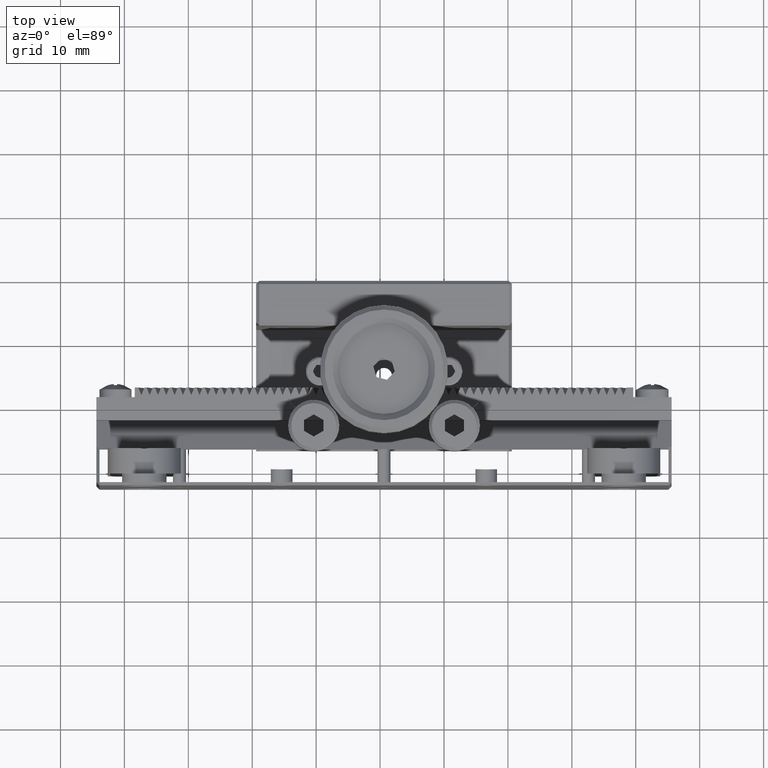
[diagram: clean part render]
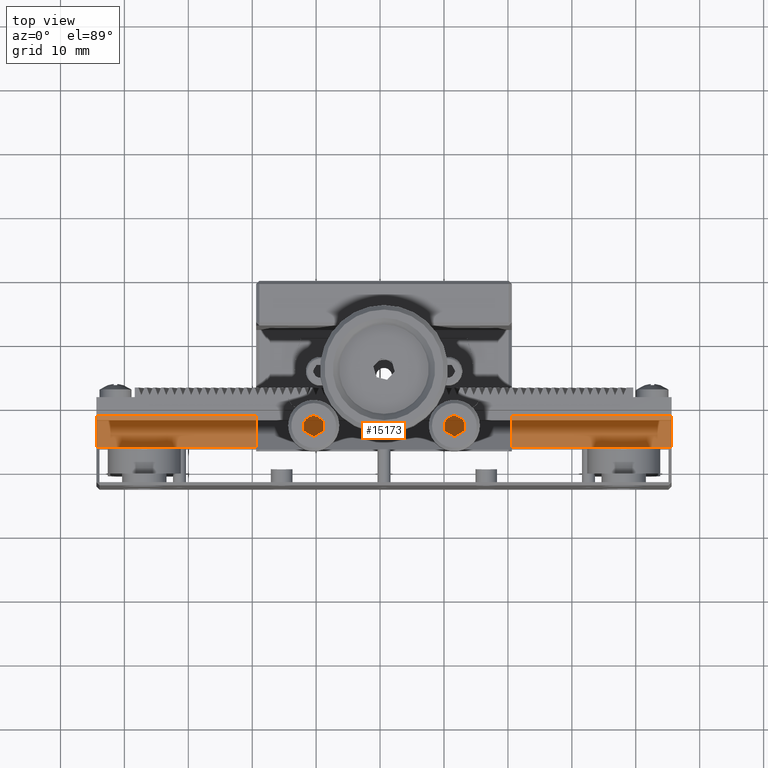
[diagram: same view with one face highlighted and labeled with its STEP entity id]
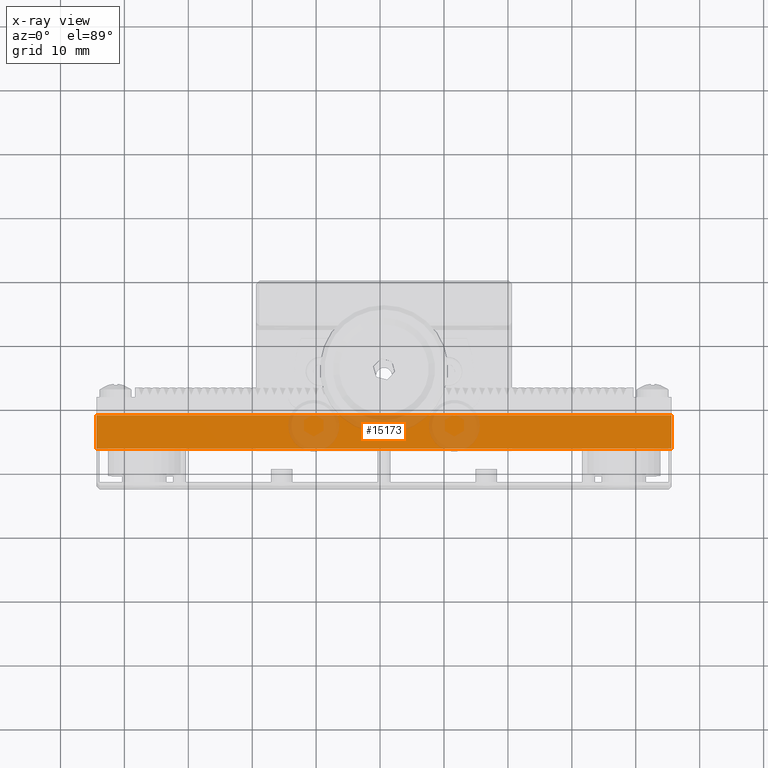
[diagram: x-ray of the same camera — body ghosted, the highlighted face saturated]
A machine part, top view. The second image highlights one B-rep face of the part: STEP entity #15173.
The next image is the same camera in x-ray: the body ghosted, the highlighted face saturated — about 18% of this face is hidden behind the body in this view.
In plain terms, the highlighted planar face has unit normal (0, 0.5, -0.866).
Its self-contained STEP definition (entity closure, byte-faithful):
#435 = VECTOR ( 'NONE', #3344, 1000.000000000000000 ) ;
#503 = VECTOR ( 'NONE', #15026, 1000.000000000000000 ) ;
#675 = EDGE_CURVE ( 'NONE', #18767, #10545, #2295, .T. ) ;
#2295 = LINE ( 'NONE', #12652, #6481 ) ;
#3344 = DIRECTION ( 'NONE',  ( 1.000000000000000000, 0.000000000000000000, -0.000000000000000000 ) ) ;
#3516 = VERTEX_POINT ( 'NONE', #15721 ) ;
#4787 = ORIENTED_EDGE ( 'NONE', *, *, #21721, .T. ) ;
#5445 = CARTESIAN_POINT ( 'NONE',  ( 65.61330177514791728, 13.55204733727808453, 3.999999999999989786 ) ) ;
#6481 = VECTOR ( 'NONE', #14520, 1000.000000000000000 ) ;
#7823 = AXIS2_PLACEMENT_3D ( 'NONE', #18493, #10354, #16630 ) ;
#8244 = ORIENTED_EDGE ( 'NONE', *, *, #9238, .F. ) ;
#9238 = EDGE_CURVE ( 'NONE', #3516, #18236, #18423, .T. ) ;
#9299 = ORIENTED_EDGE ( 'NONE', *, *, #675, .T. ) ;
#9591 = DIRECTION ( 'NONE',  ( 0.000000000000000000, -0.8660254037844400399, -0.4999999999999976130 ) ) ;
#9748 = LINE ( 'NONE', #11276, #503 ) ;
#10354 = DIRECTION ( 'NONE',  ( 1.922962686383566282E-16, 0.4999999999999976130, -0.8660254037844400399 ) ) ;
#10545 = VERTEX_POINT ( 'NONE', #17127 ) ;
#11276 = CARTESIAN_POINT ( 'NONE',  ( -24.38669822485208272, 13.55204733727808453, 3.999999999999974243 ) ) ;
#11677 = FACE_OUTER_BOUND ( 'NONE', #17815, .T. ) ;
#12652 = CARTESIAN_POINT ( 'NONE',  ( -24.38669822485208272, 18.74819975998474320, 6.999999999999969802 ) ) ;
#12891 = CARTESIAN_POINT ( 'NONE',  ( 65.61330177514791728, 18.74819975998474320, 6.999999999999990230 ) ) ;
#14520 = DIRECTION ( 'NONE',  ( 1.000000000000000000, -9.614813431917785802E-17, 1.665334536937739494E-16 ) ) ;
#15026 = DIRECTION ( 'NONE',  ( 0.000000000000000000, 0.8660254037844400399, 0.4999999999999976130 ) ) ;
#15173 = ADVANCED_FACE ( 'NONE', ( #11677 ), #15406, .T. ) ;
#15406 = PLANE ( 'NONE',  #7823 ) ;
#15721 = CARTESIAN_POINT ( 'NONE',  ( -24.38669822485208272, 13.55204733727808630, 3.999999999999976019 ) ) ;
#16013 = ORIENTED_EDGE ( 'NONE', *, *, #21007, .T. ) ;
#16630 = DIRECTION ( 'NONE',  ( 0.000000000000000000, 0.8660254037844400399, 0.4999999999999976130 ) ) ;
#17015 = VECTOR ( 'NONE', #9591, 1000.000000000000227 ) ;
#17127 = CARTESIAN_POINT ( 'NONE',  ( 65.61330177514791728, 18.74819975998474320, 6.999999999999990230 ) ) ;
#17815 = EDGE_LOOP ( 'NONE', ( #4787, #9299, #16013, #8244 ) ) ;
#18207 = CARTESIAN_POINT ( 'NONE',  ( -24.38669822485208272, 13.55204733727808453, 3.999999999999974243 ) ) ;
#18236 = VERTEX_POINT ( 'NONE', #5445 ) ;
#18423 = LINE ( 'NONE', #18207, #435 ) ;
#18493 = CARTESIAN_POINT ( 'NONE',  ( -24.38669822485208272, 13.55204733727808453, 3.999999999999974243 ) ) ;
#18767 = VERTEX_POINT ( 'NONE', #18833 ) ;
#18833 = CARTESIAN_POINT ( 'NONE',  ( -24.38669822485208272, 18.74819975998474320, 6.999999999999971578 ) ) ;
#21007 = EDGE_CURVE ( 'NONE', #10545, #18236, #21431, .T. ) ;
#21431 = LINE ( 'NONE', #12891, #17015 ) ;
#21721 = EDGE_CURVE ( 'NONE', #3516, #18767, #9748, .T. ) ;